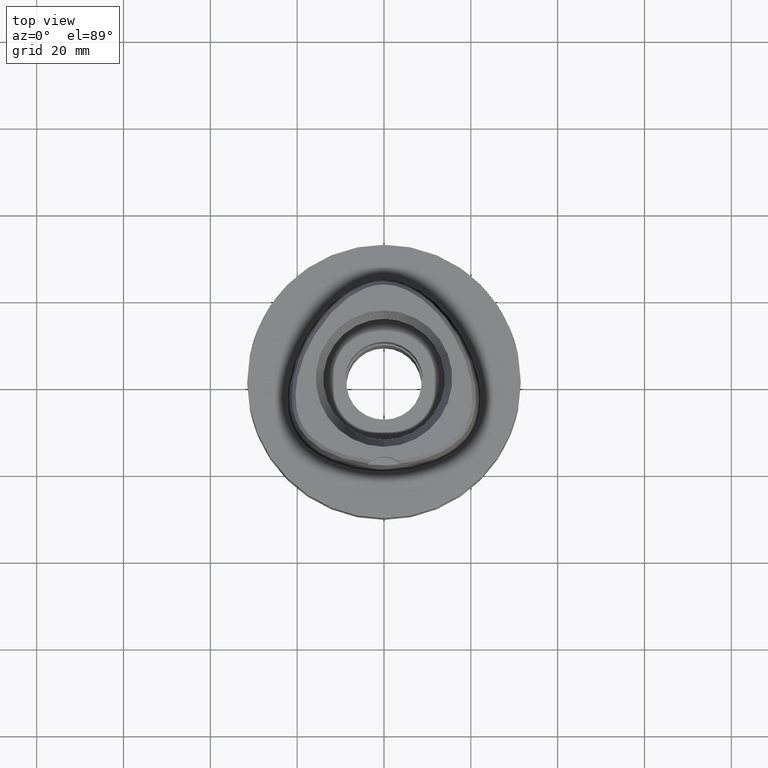
[diagram: clean part render]
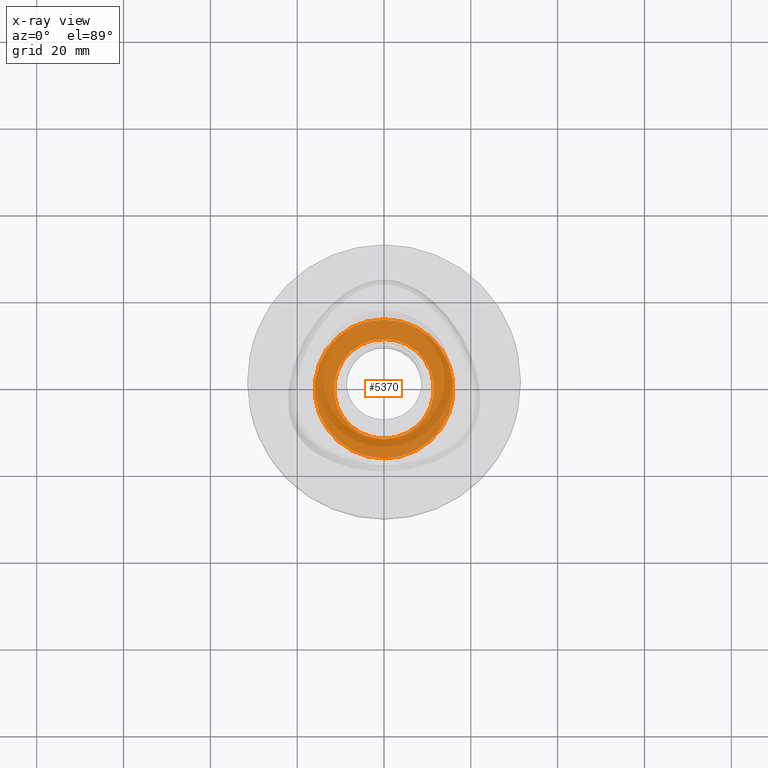
[diagram: x-ray — body ghosted, one internal face saturated and labeled with its STEP entity id]
A machine part, top view, then the same camera in x-ray: the body is ghosted and one INTERNAL B-rep face — a face not visible from any outside direction — is saturated and labeled: STEP entity #5370.
In plain terms, the highlighted planar face has unit normal (0, 0, -1).
Its self-contained STEP definition (entity closure, byte-faithful):
#56 = AXIS2_PLACEMENT_3D ( 'NONE', #2293, #4502, #2320 ) ;
#327 = CIRCLE ( 'NONE', #3497, 16.00000000000000000 ) ;
#342 = AXIS2_PLACEMENT_3D ( 'NONE', #4530, #3283, #2912 ) ;
#832 = VERTEX_POINT ( 'NONE', #4864 ) ;
#1006 = ORIENTED_EDGE ( 'NONE', *, *, #3304, .F. ) ;
#1065 = DIRECTION ( 'NONE',  ( 0.0000000000000000000, 0.0000000000000000000, 1.000000000000000000 ) ) ;
#1079 = FACE_BOUND ( 'NONE', #4560, .T. ) ;
#1486 = EDGE_LOOP ( 'NONE', ( #4547, #1006 ) ) ;
#1905 = CARTESIAN_POINT ( 'NONE',  ( 0.0000000000000000000, 11.50000000000000000, -10.80000000000000071 ) ) ;
#2133 = VERTEX_POINT ( 'NONE', #2212 ) ;
#2212 = CARTESIAN_POINT ( 'NONE',  ( 0.0000000000000000000, -16.00000000000000000, -10.80000000000000071 ) ) ;
#2293 = CARTESIAN_POINT ( 'NONE',  ( 0.0000000000000000000, 0.0000000000000000000, -10.80000000000000071 ) ) ;
#2320 = DIRECTION ( 'NONE',  ( 0.0000000000000000000, -1.000000000000000000, 0.0000000000000000000 ) ) ;
#2377 = FACE_OUTER_BOUND ( 'NONE', #1486, .T. ) ;
#2403 = DIRECTION ( 'NONE',  ( 0.0000000000000000000, 0.0000000000000000000, -1.000000000000000000 ) ) ;
#2607 = AXIS2_PLACEMENT_3D ( 'NONE', #3143, #2403, #4448 ) ;
#2731 = VERTEX_POINT ( 'NONE', #3417 ) ;
#2741 = PLANE ( 'NONE',  #56 ) ;
#2841 = DIRECTION ( 'NONE',  ( 0.0000000000000000000, 1.000000000000000000, 0.0000000000000000000 ) ) ;
#2912 = DIRECTION ( 'NONE',  ( 0.0000000000000000000, -1.000000000000000000, 0.0000000000000000000 ) ) ;
#2992 = EDGE_CURVE ( 'NONE', #5377, #832, #4579, .T. ) ;
#3143 = CARTESIAN_POINT ( 'NONE',  ( 0.0000000000000000000, 0.0000000000000000000, -10.80000000000000071 ) ) ;
#3283 = DIRECTION ( 'NONE',  ( 0.0000000000000000000, 0.0000000000000000000, 1.000000000000000000 ) ) ;
#3304 = EDGE_CURVE ( 'NONE', #2133, #2731, #327, .T. ) ;
#3417 = CARTESIAN_POINT ( 'NONE',  ( 0.0000000000000000000, 16.00000000000000000, -10.80000000000000071 ) ) ;
#3480 = CARTESIAN_POINT ( 'NONE',  ( 0.0000000000000000000, 0.0000000000000000000, -10.80000000000000071 ) ) ;
#3497 = AXIS2_PLACEMENT_3D ( 'NONE', #3480, #5504, #5137 ) ;
#3585 = ORIENTED_EDGE ( 'NONE', *, *, #2992, .F. ) ;
#3870 = CIRCLE ( 'NONE', #342, 11.50000000000000000 ) ;
#4390 = CIRCLE ( 'NONE', #2607, 16.00000000000000000 ) ;
#4448 = DIRECTION ( 'NONE',  ( 0.0000000000000000000, 1.000000000000000000, 0.0000000000000000000 ) ) ;
#4502 = DIRECTION ( 'NONE',  ( 0.0000000000000000000, 0.0000000000000000000, -1.000000000000000000 ) ) ;
#4530 = CARTESIAN_POINT ( 'NONE',  ( 0.0000000000000000000, 0.0000000000000000000, -10.80000000000000071 ) ) ;
#4547 = ORIENTED_EDGE ( 'NONE', *, *, #5407, .F. ) ;
#4560 = EDGE_LOOP ( 'NONE', ( #3585, #5389 ) ) ;
#4579 = CIRCLE ( 'NONE', #5528, 11.50000000000000000 ) ;
#4864 = CARTESIAN_POINT ( 'NONE',  ( 0.0000000000000000000, -11.50000000000000000, -10.80000000000000071 ) ) ;
#4884 = CARTESIAN_POINT ( 'NONE',  ( 0.0000000000000000000, 0.0000000000000000000, -10.80000000000000071 ) ) ;
#5069 = EDGE_CURVE ( 'NONE', #832, #5377, #3870, .T. ) ;
#5137 = DIRECTION ( 'NONE',  ( 0.0000000000000000000, -1.000000000000000000, 0.0000000000000000000 ) ) ;
#5370 = ADVANCED_FACE ( 'NONE', ( #2377, #1079 ), #2741, .F. ) ;
#5377 = VERTEX_POINT ( 'NONE', #1905 ) ;
#5389 = ORIENTED_EDGE ( 'NONE', *, *, #5069, .F. ) ;
#5407 = EDGE_CURVE ( 'NONE', #2731, #2133, #4390, .T. ) ;
#5504 = DIRECTION ( 'NONE',  ( 0.0000000000000000000, 0.0000000000000000000, -1.000000000000000000 ) ) ;
#5528 = AXIS2_PLACEMENT_3D ( 'NONE', #4884, #1065, #2841 ) ;